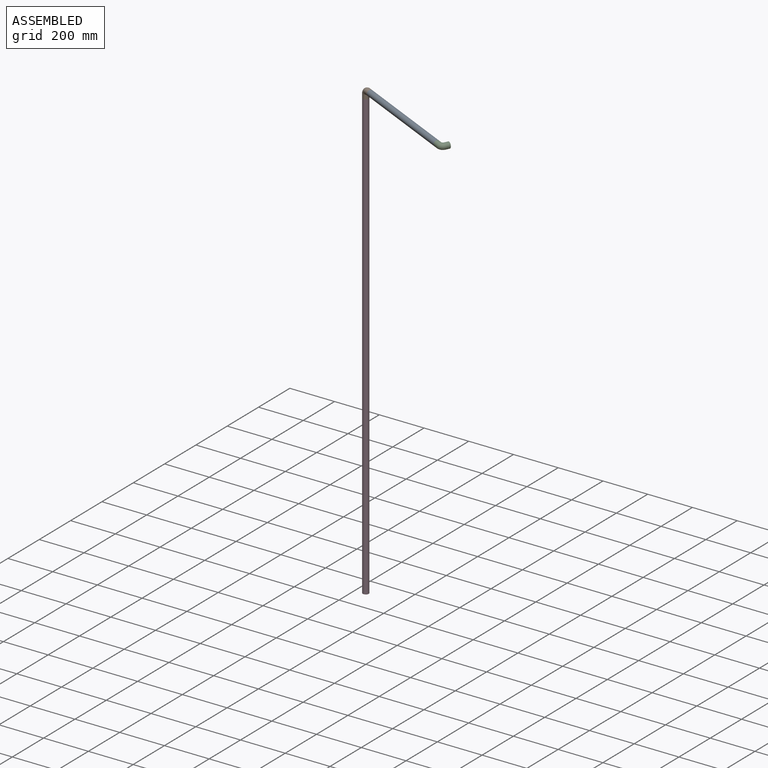
[diagram: assembled view]
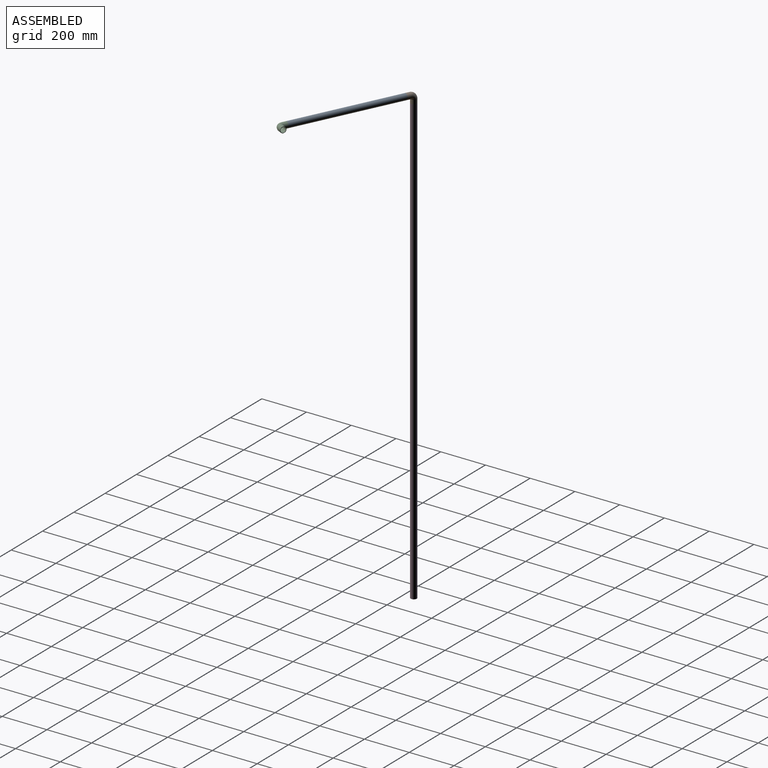
[diagram: assembled view, second angle]
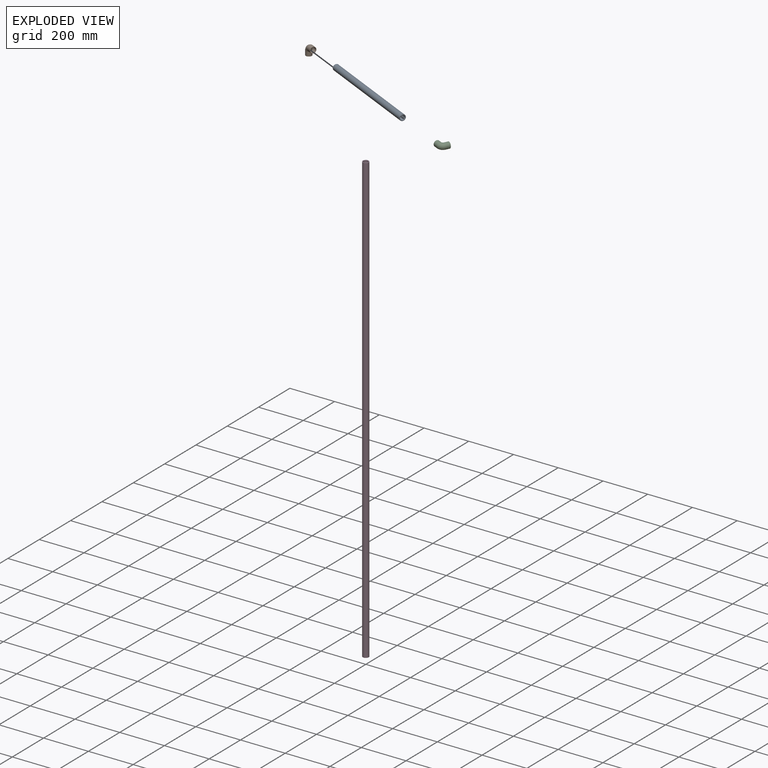
[diagram: exploded view]
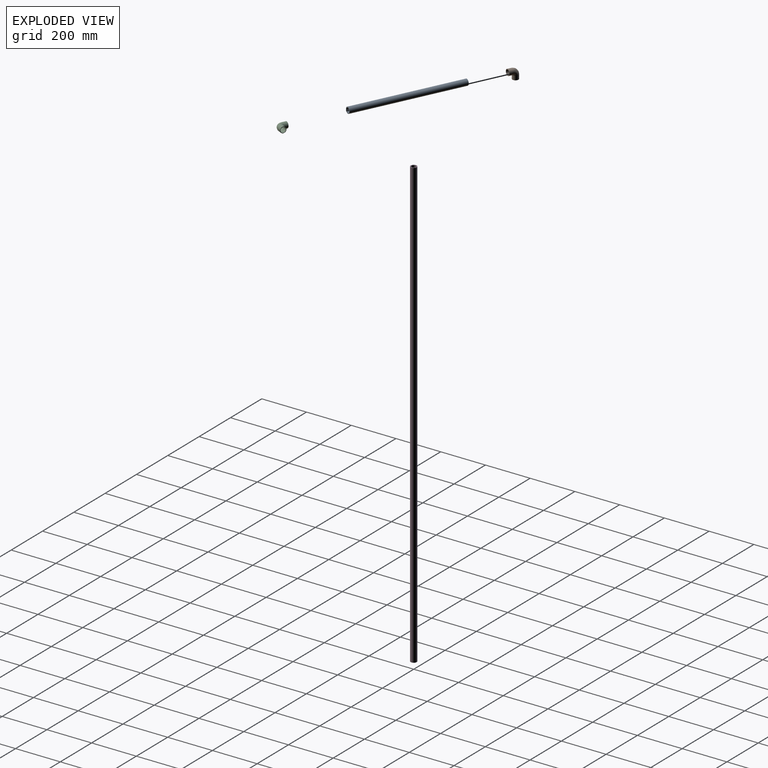
[diagram: exploded view, second angle]
ASSEMBLY  parts=4 mates=5
PART A: 4 faces, bbox 500x27x27 mm
  f0: cylinder r=10.5mm len=500mm, axis (-1,0,0), area 32986.7mm2, adj f2,f3
  f1: cylinder r=13.5mm len=500mm, axis (-1,0,0), area 42411.5mm2, adj f2,f3
  f2: plane 27x27mm, normal (1,0,0), area 226.2mm2, adj f0,f1
  f3: plane 27x27mm, normal (-1,0,0), area 226.2mm2, adj f0,f1
PART B: 8 faces, bbox 48.8x48.8x27 mm
  f0: cylinder r=12mm len=24mm, axis (1,0,0), area 1357.2mm2, adj f1,f3
  f1: torus R=15mm, axis (0,0,1), area 1776.5mm2, adj f0,f2
  f2: cylinder r=12mm len=24mm, axis (0,1,0), area 1357.2mm2, adj f1,f4
  f3: plane 27x27mm, normal (-1,0,0), area 120.2mm2, adj f0,f5
  f4: plane 27x27mm, normal (0,1,0), area 120.2mm2, adj f2,f7
  f5: cylinder r=13.5mm len=27mm, axis (1,0,0), area 1526.8mm2, adj f3,f6
  f6: torus R=15mm, axis (0,0,1), area 1998.6mm2, adj f5,f7
  f7: cylinder r=13.5mm len=27mm, axis (0,1,0), area 1526.8mm2, adj f4,f6
PART C: same geometry as B
PART D: 4 faces, bbox 2000x27x27 mm
  f0: cylinder r=10.5mm len=2000mm, axis (-1,0,0), area 131946.9mm2, adj f2,f3
  f1: cylinder r=13.5mm len=2000mm, axis (-1,0,0), area 169646mm2, adj f2,f3
  f2: plane 27x27mm, normal (1,0,0), area 226.2mm2, adj f0,f1
  f3: plane 27x27mm, normal (-1,0,0), area 226.2mm2, adj f0,f1
PLACE A rot(axis=(0,0,1),154.2deg) t=(480.05,-231.61,2033)mm
PLACE B rot(axis=(-0.16,-0.7,0.7),161.9deg) t=(29.72,-14.34,2033)mm
PLACE C rot(axis=(0.53,-0.85,0),180deg) t=(524.11,-216.23,2033)mm
PLACE D rot(axis=(0.71,0,-0.71),180deg) t=(0,0,2000)mm
MATE fastened C.f7 <-> A.f1  axis (-0.9,0.43,0) through (480.05,-231.61,2033)mm
MATE fastened B.f5 <-> A.f1  axis (0.9,-0.43,0) through (29.72,-14.34,2033)mm
MATE revolute B.f7 <-> D.f1  axis (0,0,-1) through (0,0,2000)mm
MATE slider A.f1 <-> B.f5  axis (0.9,-0.43,0) through (29.72,-14.34,2033)mm
MATE slider C.f7 <-> A.f1  axis (-0.9,0.43,0) through (480.05,-231.61,2033)mm
